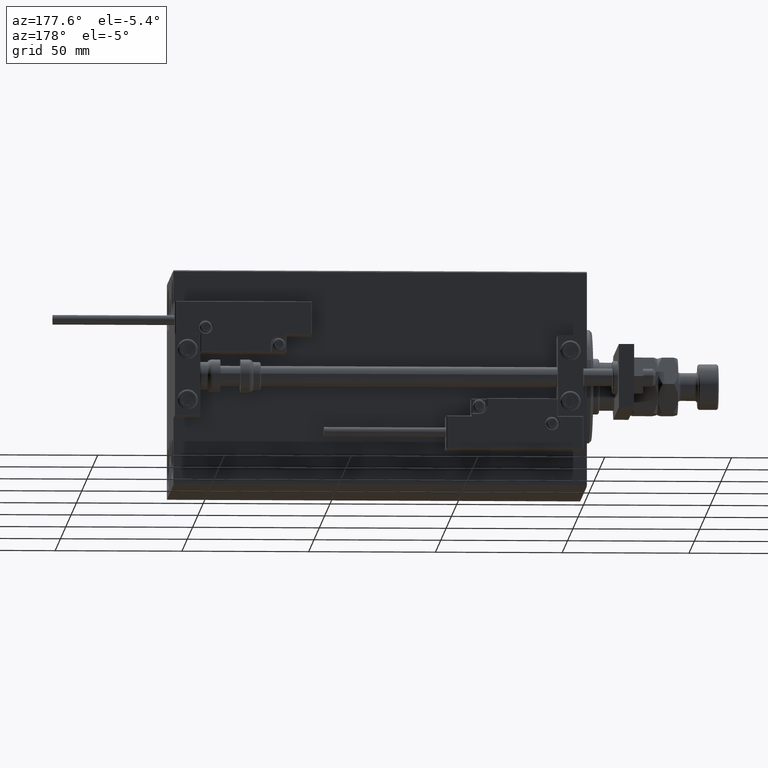
[diagram: clean part render]
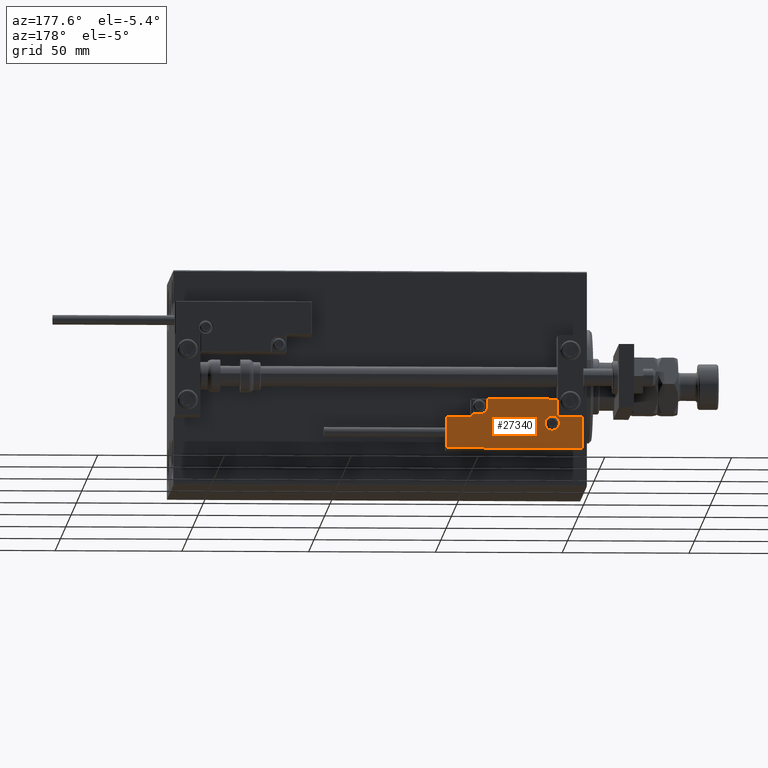
[diagram: same view with one face highlighted and labeled with its STEP entity id]
A machine part, auxiliary view. The second image highlights one B-rep face of the part: STEP entity #27340.
In plain terms, the highlighted planar face has unit normal (-0, 1, -0).
Its self-contained STEP definition (entity closure, byte-faithful):
#44 = CARTESIAN_POINT ( 'NONE',  ( -14.79999999999994920, 9.800000000000004263, 14.00000000000000000 ) ) ;
#1400 = CARTESIAN_POINT ( 'NONE',  ( 10.69999999999999929, 3.000000000000003109, 14.00000000000000000 ) ) ;
#1429 = ORIENTED_EDGE ( 'NONE', *, *, #1859, .T. ) ;
#1859 = EDGE_CURVE ( 'NONE', #50317, #10846, #21001, .T. ) ;
#1885 = EDGE_CURVE ( 'NONE', #19892, #15780, #16024, .T. ) ;
#1976 = DIRECTION ( 'NONE',  ( 0.000000000000000000, -0.000000000000000000, -1.000000000000000000 ) ) ;
#2123 = VERTEX_POINT ( 'NONE', #24092 ) ;
#2155 = EDGE_CURVE ( 'NONE', #15780, #19892, #13525, .T. ) ;
#2433 = EDGE_CURVE ( 'NONE', #2123, #37951, #28459, .T. ) ;
#3153 = CARTESIAN_POINT ( 'NONE',  ( 26.70000000000006324, 19.70000000000001705, 14.00000000000000000 ) ) ;
#3511 = VERTEX_POINT ( 'NONE', #27958 ) ;
#3562 = CARTESIAN_POINT ( 'NONE',  ( 11.00000000000000000, 0.3000000000000032085, 14.00000000000000000 ) ) ;
#4722 = LINE ( 'NONE', #27991, #22735 ) ;
#5678 = DIRECTION ( 'NONE',  ( 0.000000000000000000, -1.000000000000000000, 0.000000000000000000 ) ) ;
#5700 = CARTESIAN_POINT ( 'NONE',  ( 13.99999999999999822, 6.300000000000001599, 14.00000000000000000 ) ) ;
#6104 = DIRECTION ( 'NONE',  ( 1.000000000000000000, 0.000000000000000000, 0.000000000000000000 ) ) ;
#6651 = CARTESIAN_POINT ( 'NONE',  ( 17.00000000000000000, 6.300000000000003375, 14.00000000000000000 ) ) ;
#7127 = VERTEX_POINT ( 'NONE', #28717 ) ;
#7862 = DIRECTION ( 'NONE',  ( 0.000000000000000000, 1.000000000000000000, -0.000000000000000000 ) ) ;
#8774 = DIRECTION ( 'NONE',  ( 9.912705577010318647E-16, 1.000000000000000000, 0.000000000000000000 ) ) ;
#9280 = LINE ( 'NONE', #6651, #40453 ) ;
#10089 = ORIENTED_EDGE ( 'NONE', *, *, #34461, .T. ) ;
#10846 = VERTEX_POINT ( 'NONE', #33268 ) ;
#12767 = DIRECTION ( 'NONE',  ( -0.000000000000000000, 1.000000000000000000, -0.000000000000000000 ) ) ;
#12983 = ORIENTED_EDGE ( 'NONE', *, *, #2433, .T. ) ;
#13286 = VERTEX_POINT ( 'NONE', #35301 ) ;
#13358 = EDGE_CURVE ( 'NONE', #10846, #43228, #25723, .T. ) ;
#13525 = CIRCLE ( 'NONE', #26891, 2.800000000000000266 ) ;
#14361 = EDGE_CURVE ( 'NONE', #46348, #50317, #43742, .T. ) ;
#14406 = CARTESIAN_POINT ( 'NONE',  ( -11.99999999999994849, 9.800000000000004263, 14.00000000000000000 ) ) ;
#15780 = VERTEX_POINT ( 'NONE', #14406 ) ;
#16024 = CIRCLE ( 'NONE', #31067, 2.800000000000000266 ) ;
#16812 = DIRECTION ( 'NONE',  ( -8.006416042969869188E-16, -1.000000000000000000, 0.000000000000000000 ) ) ;
#17344 = EDGE_LOOP ( 'NONE', ( #32659, #40721 ) ) ;
#17612 = EDGE_CURVE ( 'NONE', #21340, #13286, #21048, .T. ) ;
#18273 = VECTOR ( 'NONE', #48185, 1000.000000000000000 ) ;
#18350 = CARTESIAN_POINT ( 'NONE',  ( -14.79999999999994920, 9.800000000000004263, 14.00000000000000000 ) ) ;
#18854 = CARTESIAN_POINT ( 'NONE',  ( 13.99999999999999822, 3.000000000000002665, 14.00000000000000000 ) ) ;
#19456 = AXIS2_PLACEMENT_3D ( 'NONE', #22667, #26337, #46729 ) ;
#19503 = DIRECTION ( 'NONE',  ( 1.000000000000000000, -0.000000000000000000, 0.000000000000000000 ) ) ;
#19892 = VERTEX_POINT ( 'NONE', #45499 ) ;
#20008 = EDGE_CURVE ( 'NONE', #13286, #7127, #22710, .T. ) ;
#20098 = CARTESIAN_POINT ( 'NONE',  ( 16.69999999999999929, 6.300000000000003375, 14.00000000000000000 ) ) ;
#20148 = DIRECTION ( 'NONE',  ( 1.000000000000000000, 5.782411586589357639E-16, -0.000000000000000000 ) ) ;
#21001 = LINE ( 'NONE', #32262, #44440 ) ;
#21048 = LINE ( 'NONE', #40153, #47628 ) ;
#21340 = VERTEX_POINT ( 'NONE', #20098 ) ;
#22125 = ORIENTED_EDGE ( 'NONE', *, *, #13358, .T. ) ;
#22351 = ORIENTED_EDGE ( 'NONE', *, *, #20008, .T. ) ;
#22667 = CARTESIAN_POINT ( 'NONE',  ( 0.000000000000000000, 0.000000000000000000, 14.00000000000000000 ) ) ;
#22675 = EDGE_CURVE ( 'NONE', #43228, #3511, #49097, .T. ) ;
#22710 = LINE ( 'NONE', #29791, #49443 ) ;
#22735 = VECTOR ( 'NONE', #7862, 1000.000000000000000 ) ;
#22744 = VECTOR ( 'NONE', #12767, 1000.000000000000000 ) ;
#22847 = CARTESIAN_POINT ( 'NONE',  ( -26.69999999999993534, 19.70000000000002061, 14.00000000000000000 ) ) ;
#24024 = CARTESIAN_POINT ( 'NONE',  ( 10.69999999999999929, 3.000000000000003109, 14.00000000000000000 ) ) ;
#24092 = CARTESIAN_POINT ( 'NONE',  ( 10.69999999999999929, 0.3000000000000032085, 14.00000000000000000 ) ) ;
#24362 = DIRECTION ( 'NONE',  ( 1.000000000000000000, 0.000000000000000000, 0.000000000000000000 ) ) ;
#25723 = LINE ( 'NONE', #49809, #45824 ) ;
#26337 = DIRECTION ( 'NONE',  ( -0.000000000000000000, 0.000000000000000000, 1.000000000000000000 ) ) ;
#26890 = DIRECTION ( 'NONE',  ( 1.000000000000000000, -1.734723475976796001E-16, 0.000000000000000000 ) ) ;
#26891 = AXIS2_PLACEMENT_3D ( 'NONE', #44, #28015, #24362 ) ;
#27112 = AXIS2_PLACEMENT_3D ( 'NONE', #18854, #1976, #50790 ) ;
#27340 = ADVANCED_FACE ( 'NONE', ( #38120, #37864 ), #42537, .T. ) ;
#27911 = EDGE_LOOP ( 'NONE', ( #36284, #10089, #12983, #41371, #44258, #35913, #22351, #46705, #51490, #1429, #22125 ) ) ;
#27958 = CARTESIAN_POINT ( 'NONE',  ( -16.69999999999999218, 0.3000000000000032085, 14.00000000000000000 ) ) ;
#27991 = CARTESIAN_POINT ( 'NONE',  ( 26.70000000000006324, 20.00000000000001776, 14.00000000000000000 ) ) ;
#28015 = DIRECTION ( 'NONE',  ( 0.000000000000000000, -0.000000000000000000, -1.000000000000000000 ) ) ;
#28459 = LINE ( 'NONE', #24024, #22744 ) ;
#28717 = CARTESIAN_POINT ( 'NONE',  ( 26.70000000000006324, 7.300000000000007816, 14.00000000000000000 ) ) ;
#29791 = CARTESIAN_POINT ( 'NONE',  ( 27.00000000000006395, 7.300000000000007816, 14.00000000000000000 ) ) ;
#30930 = VERTEX_POINT ( 'NONE', #5700 ) ;
#30960 = VECTOR ( 'NONE', #5678, 1000.000000000000000 ) ;
#31067 = AXIS2_PLACEMENT_3D ( 'NONE', #18350, #37744, #6104 ) ;
#31241 = EDGE_CURVE ( 'NONE', #30930, #21340, #9280, .T. ) ;
#32262 = CARTESIAN_POINT ( 'NONE',  ( -26.69999999999994600, 7.000000000000005329, 14.00000000000000000 ) ) ;
#32659 = ORIENTED_EDGE ( 'NONE', *, *, #2155, .T. ) ;
#33268 = CARTESIAN_POINT ( 'NONE',  ( -26.69999999999994600, 7.300000000000005151, 14.00000000000000000 ) ) ;
#34461 = EDGE_CURVE ( 'NONE', #3511, #2123, #51181, .T. ) ;
#34675 = EDGE_CURVE ( 'NONE', #37951, #30930, #35479, .T. ) ;
#35301 = CARTESIAN_POINT ( 'NONE',  ( 16.69999999999999929, 7.300000000000009592, 14.00000000000000000 ) ) ;
#35479 = CIRCLE ( 'NONE', #27112, 3.299999999999997158 ) ;
#35913 = ORIENTED_EDGE ( 'NONE', *, *, #17612, .T. ) ;
#36284 = ORIENTED_EDGE ( 'NONE', *, *, #22675, .T. ) ;
#37744 = DIRECTION ( 'NONE',  ( 0.000000000000000000, -0.000000000000000000, -1.000000000000000000 ) ) ;
#37864 = FACE_OUTER_BOUND ( 'NONE', #27911, .T. ) ;
#37951 = VERTEX_POINT ( 'NONE', #1400 ) ;
#38120 = FACE_BOUND ( 'NONE', #17344, .T. ) ;
#40153 = CARTESIAN_POINT ( 'NONE',  ( 16.69999999999999929, 7.000000000000009770, 14.00000000000000000 ) ) ;
#40453 = VECTOR ( 'NONE', #20148, 1000.000000000000000 ) ;
#40721 = ORIENTED_EDGE ( 'NONE', *, *, #1885, .T. ) ;
#41371 = ORIENTED_EDGE ( 'NONE', *, *, #34675, .T. ) ;
#42537 = PLANE ( 'NONE',  #19456 ) ;
#43139 = DIRECTION ( 'NONE',  ( 1.000000000000000000, -1.734723475976815230E-16, 0.000000000000000000 ) ) ;
#43228 = VERTEX_POINT ( 'NONE', #44819 ) ;
#43742 = LINE ( 'NONE', #51357, #18273 ) ;
#44258 = ORIENTED_EDGE ( 'NONE', *, *, #31241, .T. ) ;
#44440 = VECTOR ( 'NONE', #16812, 1000.000000000000000 ) ;
#44819 = CARTESIAN_POINT ( 'NONE',  ( -16.69999999999999218, 7.300000000000003375, 14.00000000000000000 ) ) ;
#45499 = CARTESIAN_POINT ( 'NONE',  ( -17.59999999999994813, 9.800000000000004263, 14.00000000000000000 ) ) ;
#45824 = VECTOR ( 'NONE', #43139, 1000.000000000000000 ) ;
#46348 = VERTEX_POINT ( 'NONE', #3153 ) ;
#46705 = ORIENTED_EDGE ( 'NONE', *, *, #51399, .T. ) ;
#46729 = DIRECTION ( 'NONE',  ( 1.000000000000000000, 0.000000000000000000, 0.000000000000000000 ) ) ;
#47628 = VECTOR ( 'NONE', #8774, 1000.000000000000000 ) ;
#48185 = DIRECTION ( 'NONE',  ( -1.000000000000000000, 6.424901762877063495E-17, -0.000000000000000000 ) ) ;
#48839 = CARTESIAN_POINT ( 'NONE',  ( -16.69999999999999218, 3.252606517456513302E-15, 14.00000000000000000 ) ) ;
#48939 = VECTOR ( 'NONE', #19503, 1000.000000000000000 ) ;
#49097 = LINE ( 'NONE', #48839, #30960 ) ;
#49443 = VECTOR ( 'NONE', #26890, 1000.000000000000000 ) ;
#49809 = CARTESIAN_POINT ( 'NONE',  ( -16.99999999999999289, 7.300000000000003375, 14.00000000000000000 ) ) ;
#50317 = VERTEX_POINT ( 'NONE', #22847 ) ;
#50790 = DIRECTION ( 'NONE',  ( 1.000000000000000000, 0.000000000000000000, 0.000000000000000000 ) ) ;
#51181 = LINE ( 'NONE', #3562, #48939 ) ;
#51357 = CARTESIAN_POINT ( 'NONE',  ( -26.99999999999993605, 19.70000000000002061, 14.00000000000000000 ) ) ;
#51399 = EDGE_CURVE ( 'NONE', #7127, #46348, #4722, .T. ) ;
#51490 = ORIENTED_EDGE ( 'NONE', *, *, #14361, .T. ) ;